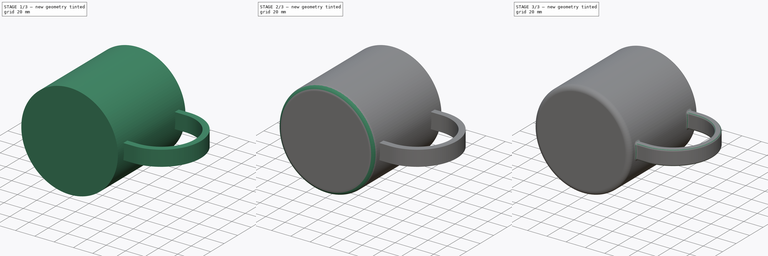
[diagram: build sequence overview — one tinted view per stage of 3, left to right]
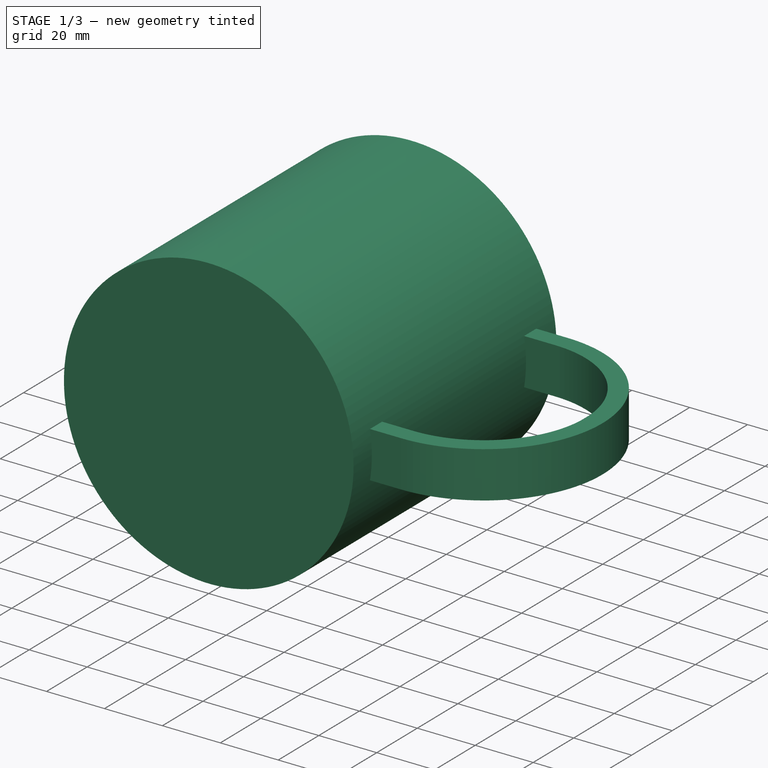
[diagram: stage 1 of 3 — iso view after this stage's code; geometry added in this stage tinted green]
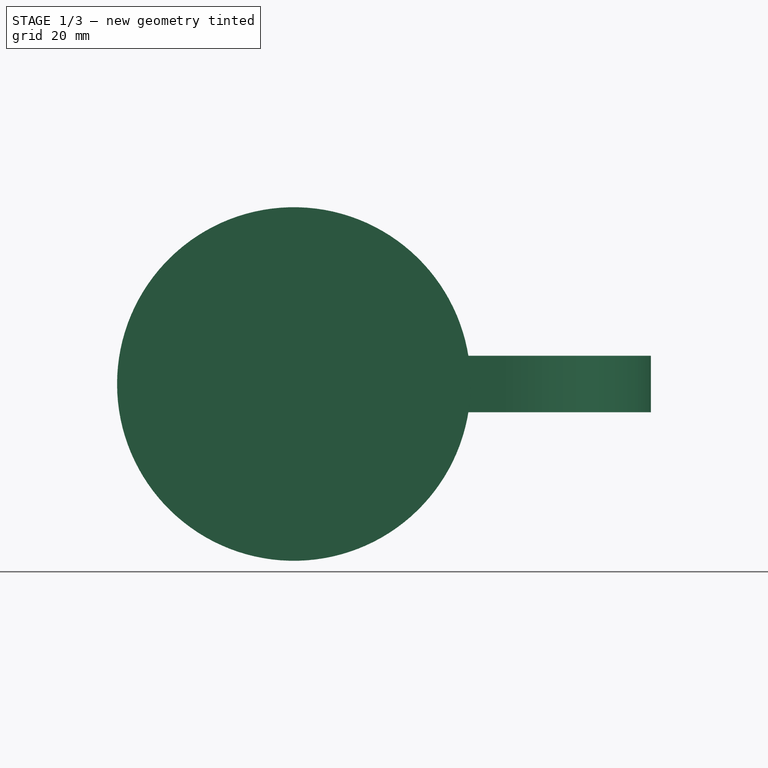
[diagram: stage 1 of 3 — front view after this stage's code; geometry added in this stage tinted green]
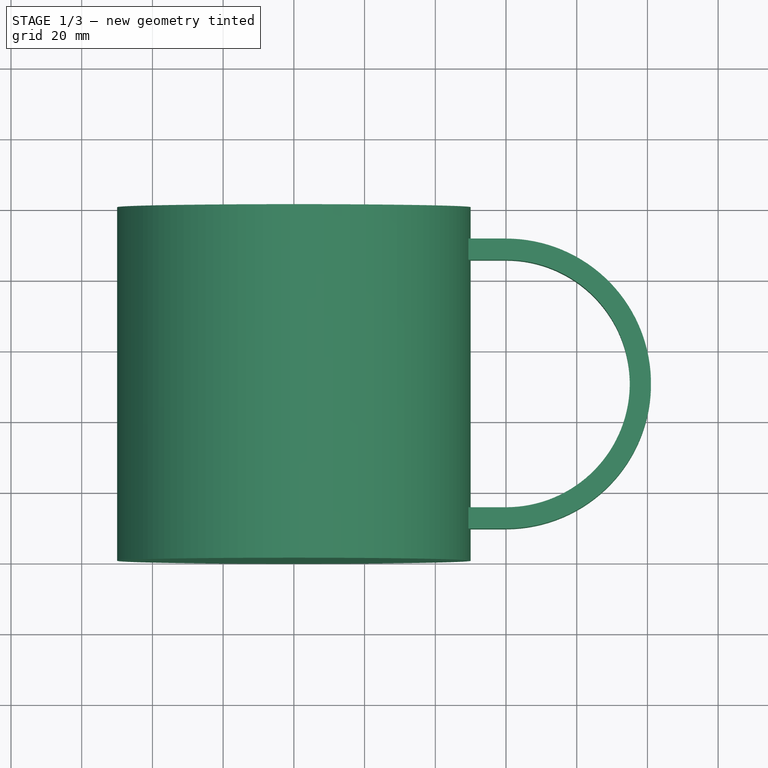
[diagram: stage 1 of 3 — top view after this stage's code; geometry added in this stage tinted green]
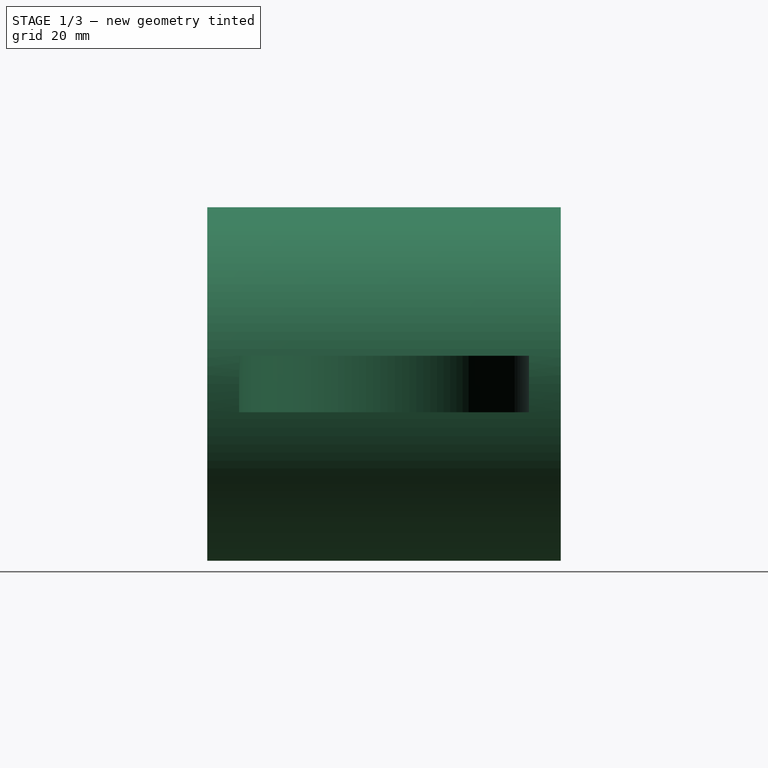
[diagram: stage 1 of 3 — right view after this stage's code; geometry added in this stage tinted green]
FCSTD DOCUMENT  (FreeCAD 0.19R22894 (Git))
Label: 002-CupFirstAttempt_FreeCAD_0.19-22894
License: All rights reserved
LicenseURL: http://en.wikipedia.org/wiki/All_rights_reserved
objects: PartDesign::Fillet×3, Sketcher::SketchObject×2, PartDesign::Revolution×1, PartDesign::Pad×1, PartDesign::Body×1
note: 13 computed .brp shape members not serialized (recipe doc carries the construction recipe); baked Part::Feature solids carry a one-line shape summary decoded from their .brp

FEATURE [Sketcher::SketchObject] Sketch  label="s_CupWall"
  MapMode = 5
  Support = -> [XY_Plane]
  sketch-geometry (6):
    g0: LineSegment StartX=7.1e-15 StartY=-1.5506e-12 StartZ=0 EndX=50 EndY=-1.5506e-12 EndZ=0
    g1: LineSegment StartX=50 StartY=-1.5506e-12 StartZ=0 EndX=50 EndY=100 EndZ=0
    g2: LineSegment StartX=50 StartY=100 StartZ=0 EndX=44 EndY=100 EndZ=0
    g3: LineSegment StartX=44 StartY=100 StartZ=0 EndX=44 EndY=4 EndZ=0
    g4: LineSegment StartX=44 StartY=4 StartZ=0 EndX=7.1e-15 EndY=4 EndZ=0
    g5: LineSegment StartX=7.1e-15 StartY=4 StartZ=0 EndX=7.1e-15 EndY=-1.5508e-12 EndZ=0
  constraints (17):
    c: Horizontal(g0)
    c: Coincident(g0,g1)
    c: Vertical(g1)
    c: Coincident(g1,g2)
    c: Horizontal(g2)
    c: Coincident(g2,g3)
    c: Vertical(g3)
    c: Coincident(g3,g4)
    c: Horizontal(g4)
    c: Coincident(g4,g5)
    c: Coincident(g5,g0)
    c: Vertical(g5)
    c: DistanceY(g5,g5) = 4  'bottom_wall'
    c: DistanceX(g2,g2) = 6  'vert_wall'
    c: DistanceY(g1,g1) = 100  'height'
    c: DistanceX(g0,g0) = 50  'dia'
    c: Coincident(g0,g-1)
FEATURE [PartDesign::Revolution] Revolution  label="CupWall"
  Angle = 360
  Axis = (0,1,0)
  Base = (0,0,0)
  Profile = -> Sketch
  ReferenceAxis = -> Sketch [V_Axis]
FEATURE [Sketcher::SketchObject] Sketch001  label="s_Handle"
  MapMode = 5
  Support = -> [XY_Plane]
  expr: Constraints[24] = <<s_CupWall>>.Constraints.dia - <<s_CupWall>>.Constraints.vert_wall
  expr: Constraints[20] = <<s_CupWall>>.Constraints.height * 0.5
  sketch-geometry (8):
    g0: ArcOfCircle CenterX=60 CenterY=50 CenterZ=0 NormalX=0 NormalY=0 NormalZ=1 AngleXU=0 Radius=35 StartAngle=4.71239 EndAngle=7.85398
    g1: ArcOfCircle CenterX=60 CenterY=50 CenterZ=0 NormalX=0 NormalY=0 NormalZ=1 AngleXU=0 Radius=41 StartAngle=4.71239 EndAngle=7.85398
    g2: LineSegment StartX=60 StartY=91 StartZ=0 EndX=44.0001 EndY=91 EndZ=0
    g3: LineSegment StartX=44.0001 StartY=91 StartZ=0 EndX=44.0001 EndY=85 EndZ=0
    g4: LineSegment StartX=44.0001 StartY=85 StartZ=0 EndX=60 EndY=85 EndZ=0
    g5: LineSegment StartX=59.9999 StartY=15 StartZ=0 EndX=44 EndY=15 EndZ=0
    g6: LineSegment StartX=44 StartY=15 StartZ=0 EndX=44 EndY=9 EndZ=0
    g7: LineSegment StartX=44 StartY=9 StartZ=0 EndX=59.9999 EndY=9 EndZ=0
  constraints (25):
    c: Coincident(g1,g0)
    c: DistanceX(g-1,g0) = 60
    c: Coincident(g1,g2)
    c: Horizontal(g2)
    c: Coincident(g2,g3)
    c: Vertical(g3)
    c: Coincident(g3,g4)
    c: Coincident(g4,g0)
    c: Horizontal(g4)
    c: Coincident(g0,g5)
    c: Horizontal(g5)
    c: Coincident(g5,g6)
    c: Vertical(g6)
    c: Coincident(g6,g7)
    c: Coincident(g7,g1)
    c: Horizontal(g7)
    c: Equal(g4,g2)
    c: Equal(g7,g5)
    c: Equal(g5,g4)
    c: Equal(g3,g6)
    c: DistanceY(g-1,g0) = 50
    c: Radius(g0) = 35
    c: Radius(g1) = 41
    c: Tangent(g0,g4)
    c: DistanceX(g-1,g6) = 44
FEATURE [PartDesign::Pad] Pad  label="Handle"
  BaseFeature = -> Revolution
  Direction = (1,1,1)
  Length = 16
  Length2 = 100
  Midplane = true
  Profile = -> Sketch001
  Type = 0
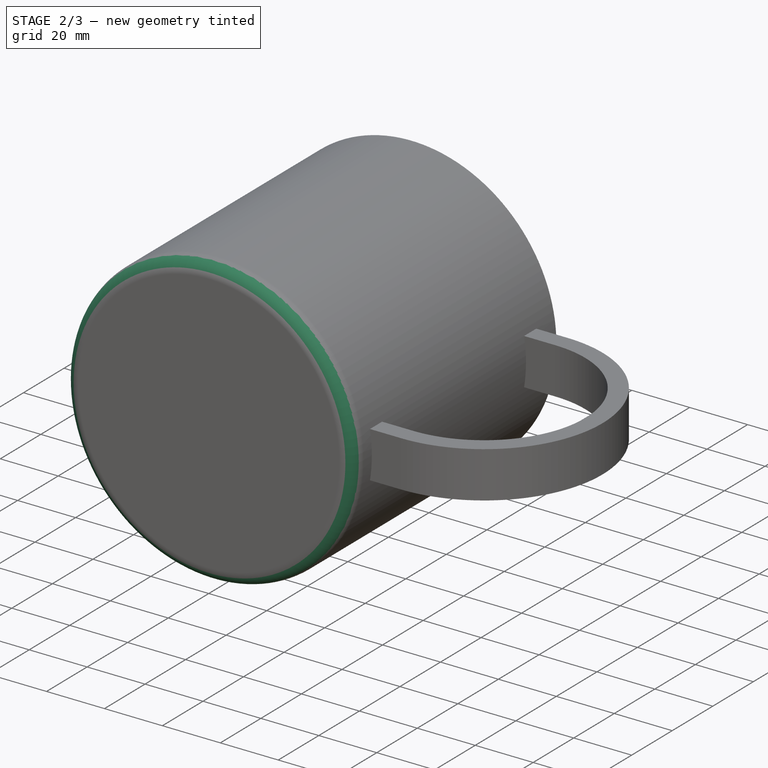
[diagram: stage 2 of 3 — iso view after this stage's code; geometry added in this stage tinted green]
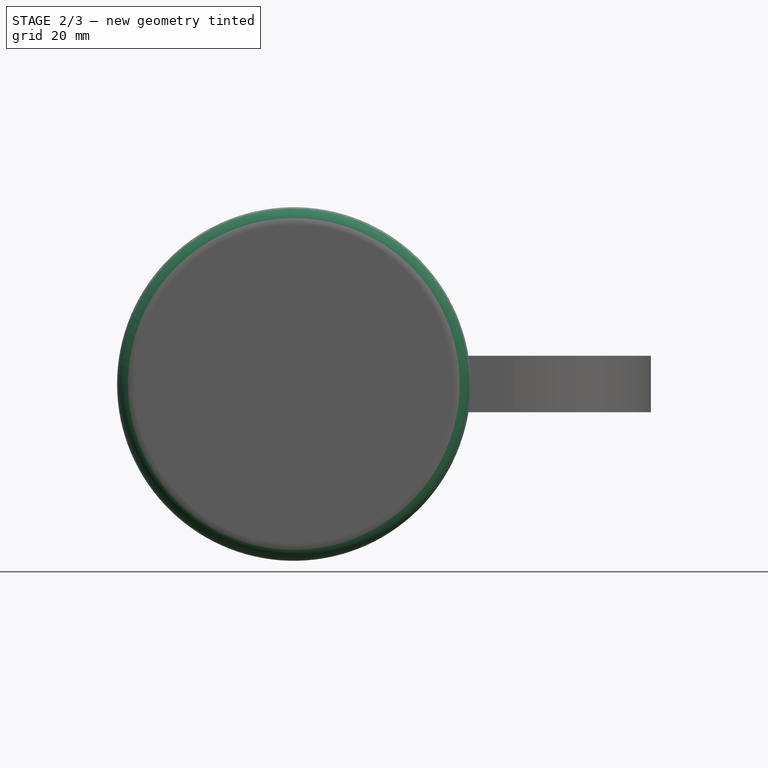
[diagram: stage 2 of 3 — front view after this stage's code; geometry added in this stage tinted green]
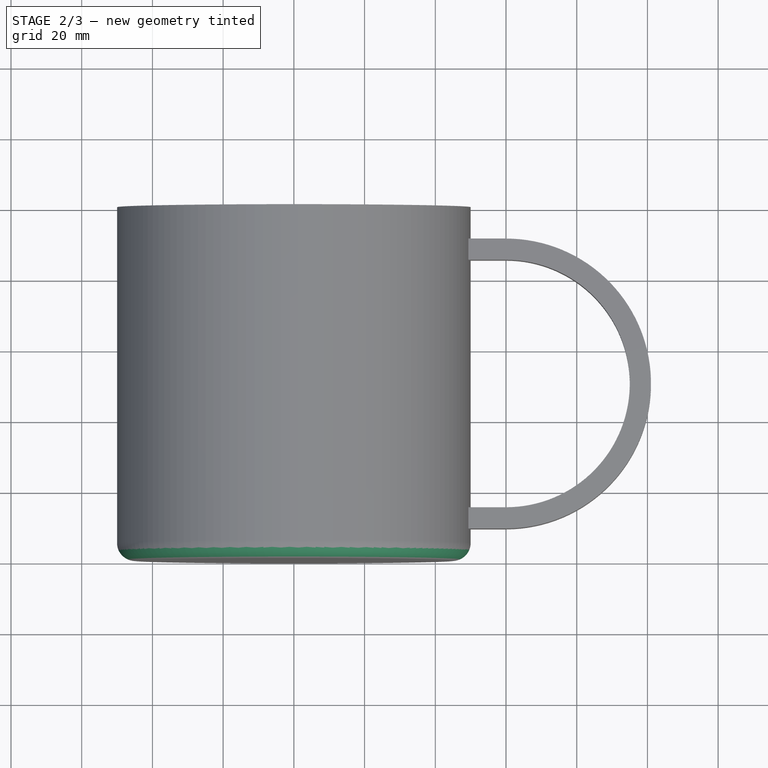
[diagram: stage 2 of 3 — top view after this stage's code; geometry added in this stage tinted green]
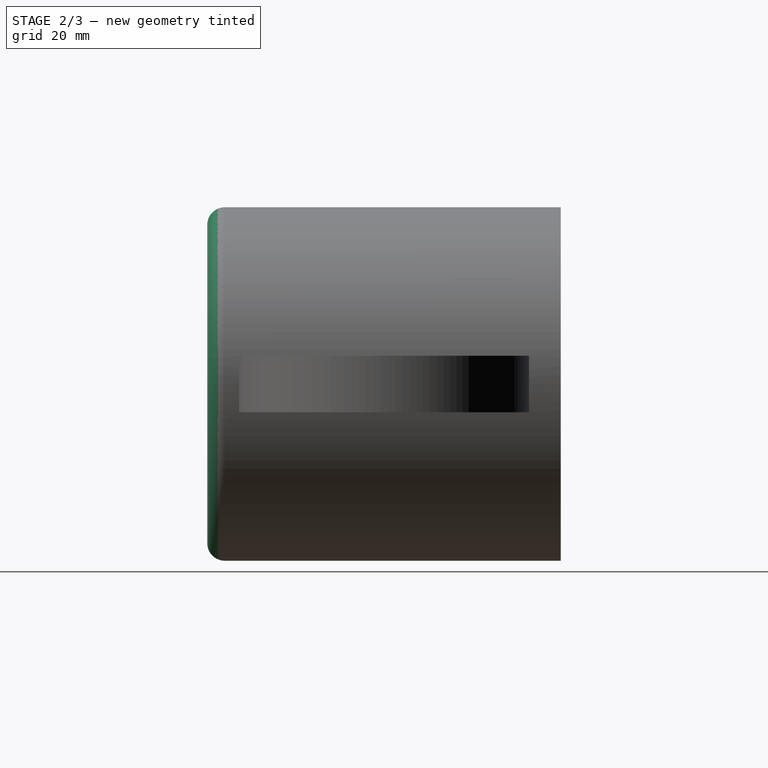
[diagram: stage 2 of 3 — right view after this stage's code; geometry added in this stage tinted green]
FEATURE [PartDesign::Fillet] Fillet  label="f_CupBottom"
  Base = -> Pad [Edge1]
  BaseFeature = -> Pad
  Radius = 5
  SupportTransform = false
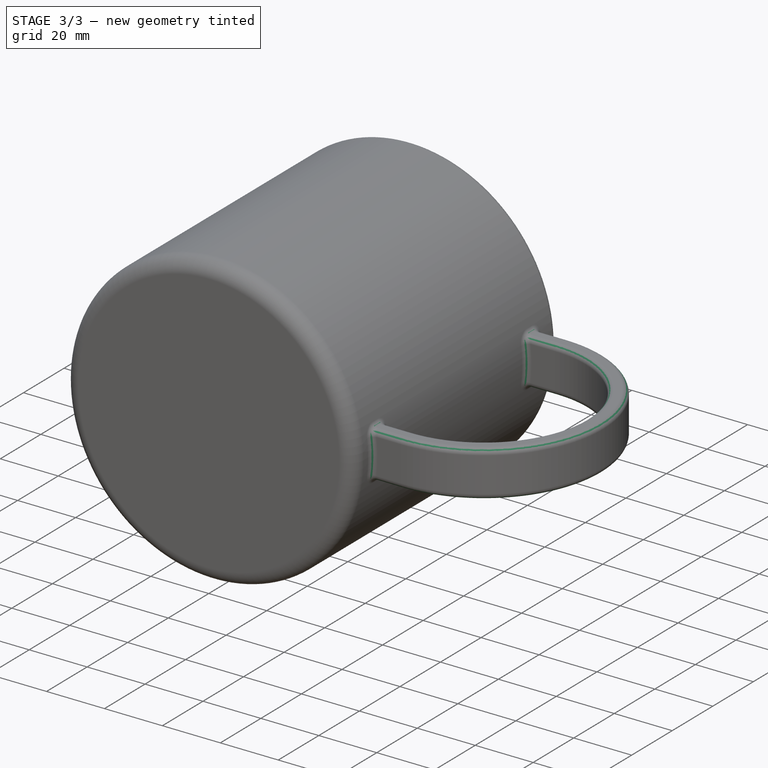
[diagram: stage 3 of 3 — iso view after this stage's code; geometry added in this stage tinted green]
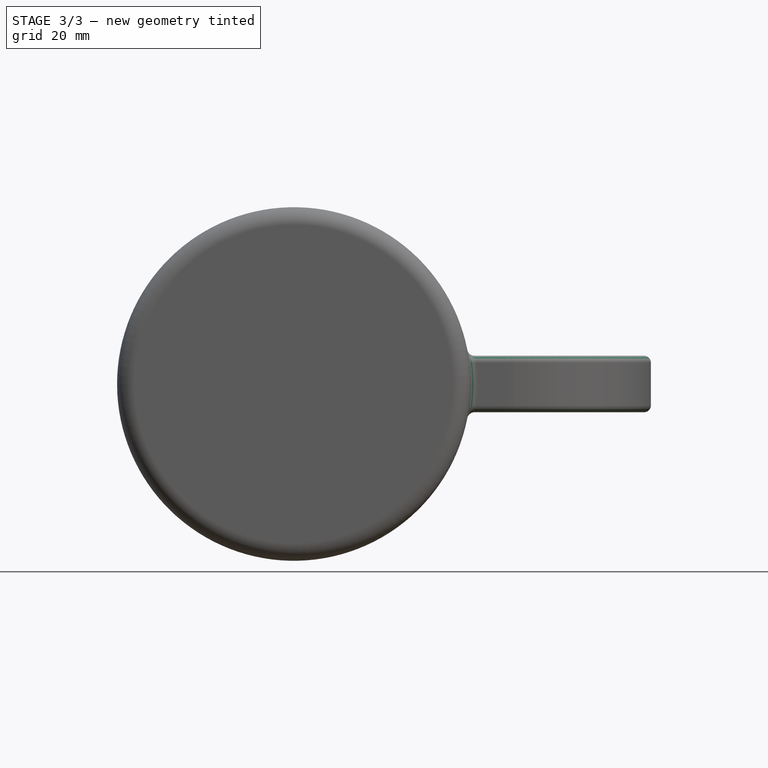
[diagram: stage 3 of 3 — front view after this stage's code; geometry added in this stage tinted green]
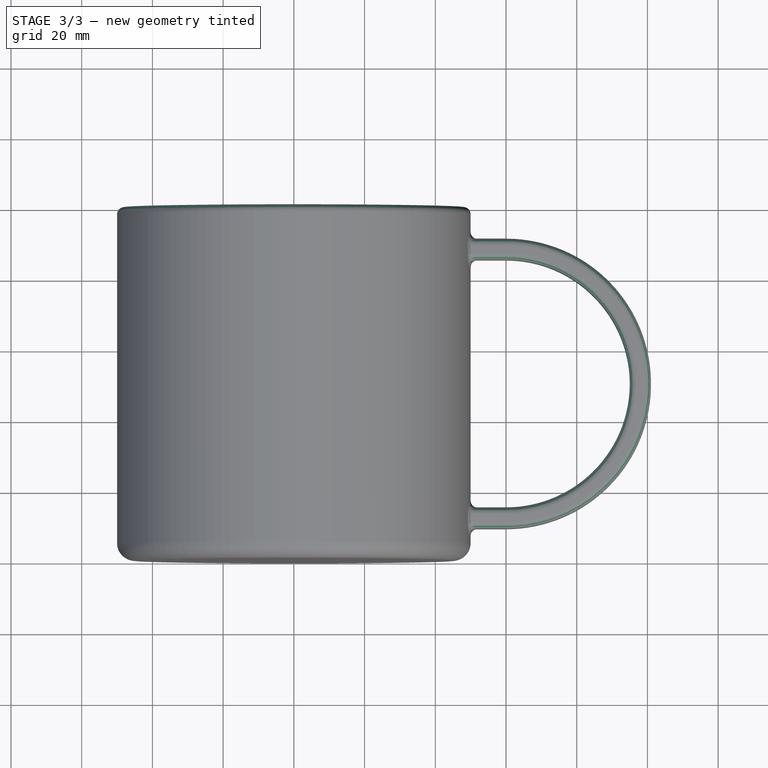
[diagram: stage 3 of 3 — top view after this stage's code; geometry added in this stage tinted green]
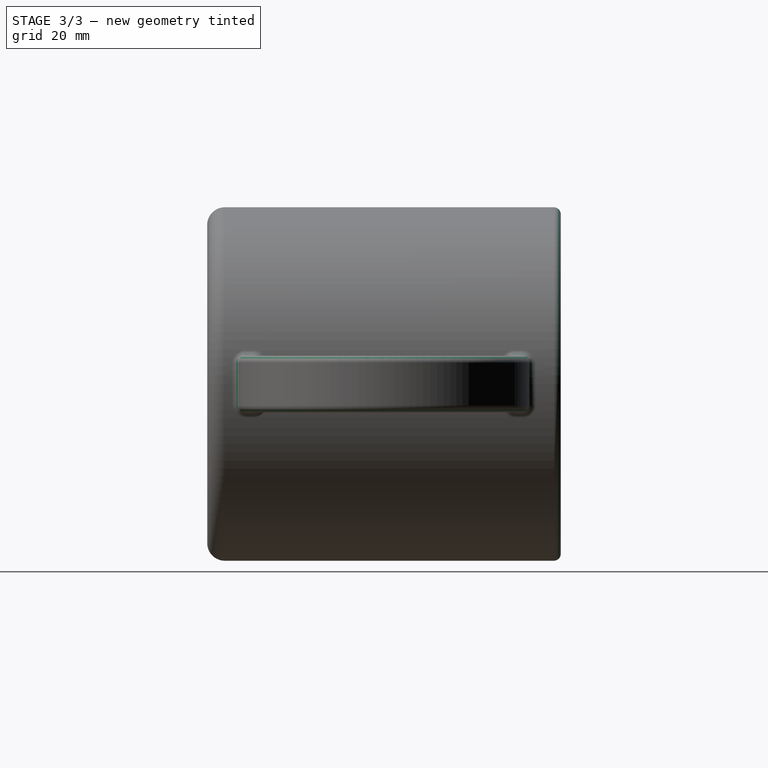
[diagram: stage 3 of 3 — right view after this stage's code; geometry added in this stage tinted green]
FEATURE [PartDesign::Fillet] Fillet001  label="f_CupTopInside"
  Base = -> Fillet [Edge19,Edge40,Edge36]
  BaseFeature = -> Fillet
  Radius = 2
  SupportTransform = false
FEATURE [PartDesign::Fillet] Fillet002  label="f_Handle"
  Base = -> Fillet001 [Edge32,Edge25,Edge7,Edge5,Edge3,Edge4,Edge6,Edge9,Edge11,Edge13,Edge16,Edge10,Edge12,Edge14,Edge27,Edge33]
  BaseFeature = -> Fillet001
  Radius = 2
  SupportTransform = false
FEATURE [PartDesign::Body] Body
  Group = -> [Sketch,Revolution,Sketch001,Pad,Fillet,Fillet001,Fillet002]
  Origin = -> Origin
  Tip = -> Fillet002
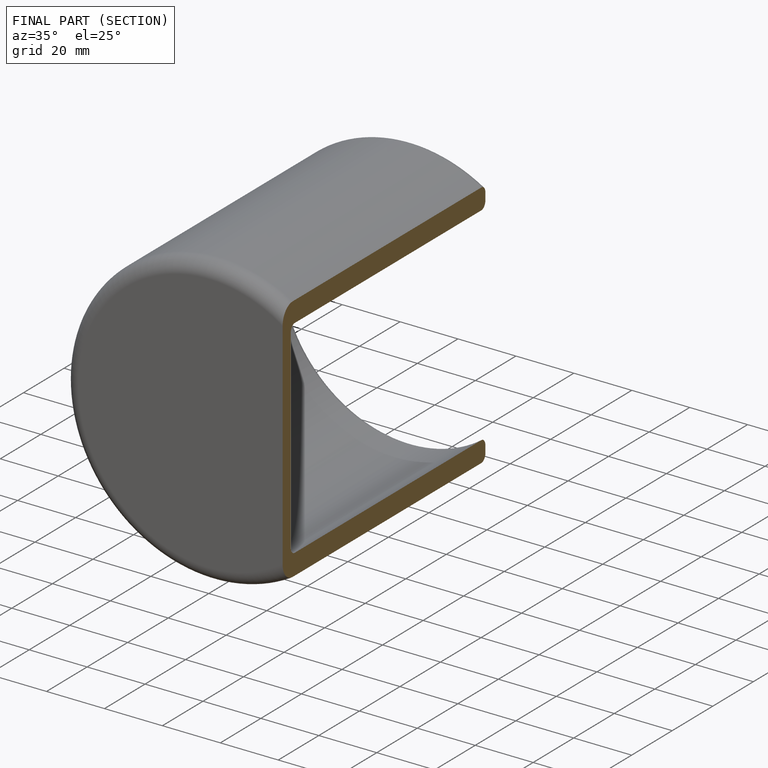
[diagram: finished part — half-section view (interior)]
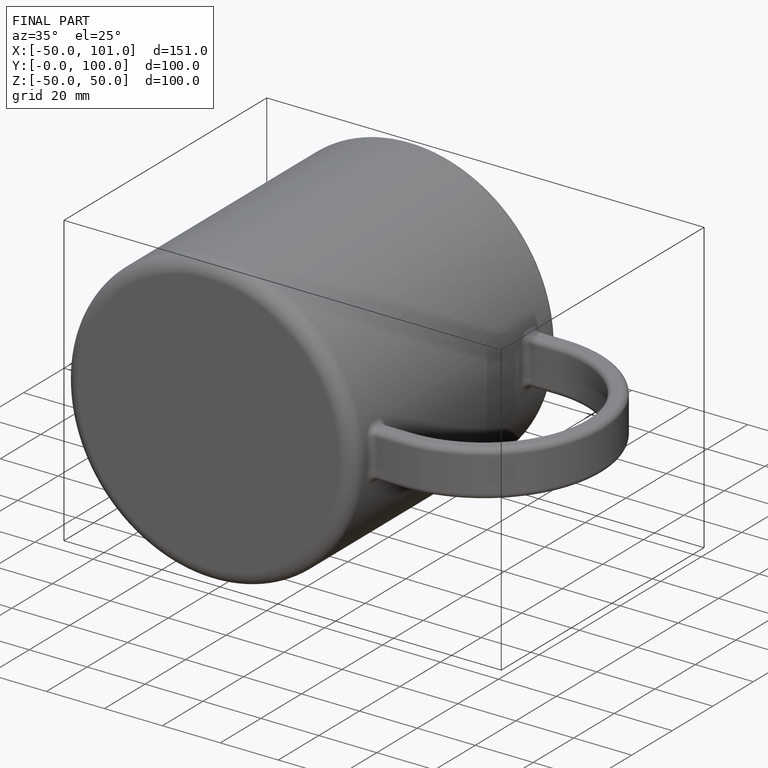
[diagram: finished part — iso view with bounding-box wireframe]
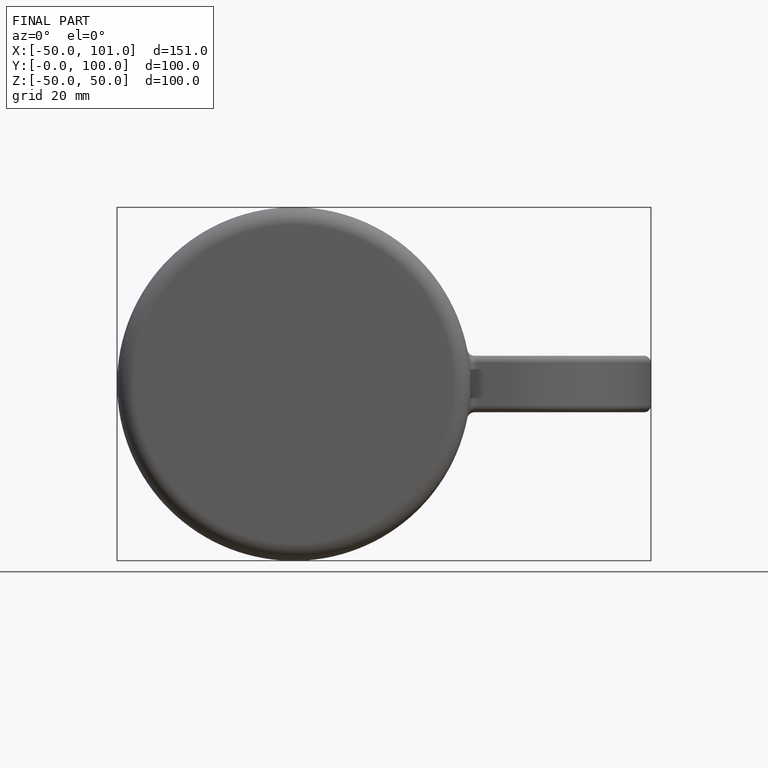
[diagram: finished part — front view with bounding-box wireframe]
